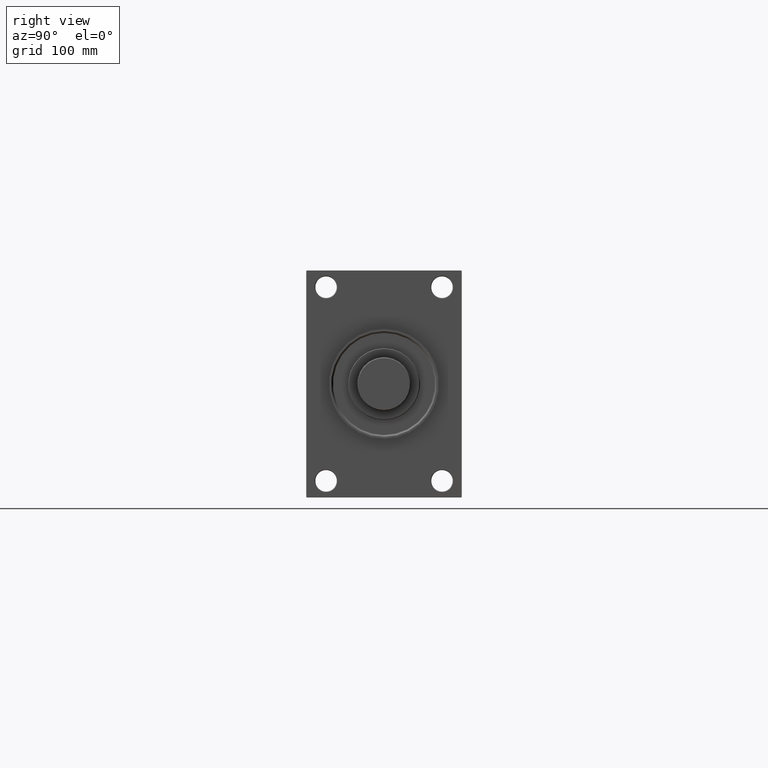
[diagram: clean part render]
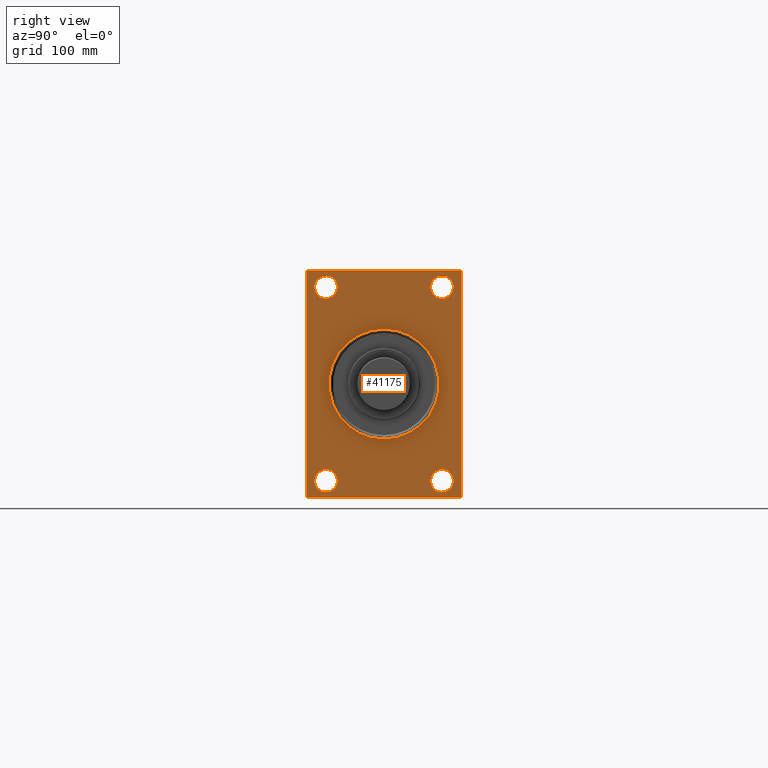
[diagram: same view with one face highlighted and labeled with its STEP entity id]
A machine part, right view. The second image highlights one B-rep face of the part: STEP entity #41175.
In plain terms, the highlighted planar face has unit normal (-1, 0, 0).
Its self-contained STEP definition (entity closure, byte-faithful):
#1190 = LINE ( 'NONE', #16121, #19328 ) ;
#1670 = DIRECTION ( 'NONE',  ( 0.000000000000000000, 0.000000000000000000, -1.000000000000000000 ) ) ;
#1694 = VERTEX_POINT ( 'NONE', #36394 ) ;
#1827 = VERTEX_POINT ( 'NONE', #3641 ) ;
#1848 = DIRECTION ( 'NONE',  ( 0.000000000000000000, 0.000000000000000000, -1.000000000000000000 ) ) ;
#2031 = ORIENTED_EDGE ( 'NONE', *, *, #41646, .T. ) ;
#2332 = LINE ( 'NONE', #25034, #20994 ) ;
#2667 = DIRECTION ( 'NONE',  ( -1.000000000000000000, 0.000000000000000000, -0.000000000000000000 ) ) ;
#3392 = FACE_BOUND ( 'NONE', #14671, .T. ) ;
#3629 = ORIENTED_EDGE ( 'NONE', *, *, #25963, .T. ) ;
#3635 = FACE_BOUND ( 'NONE', #18514, .T. ) ;
#3641 = CARTESIAN_POINT ( 'NONE',  ( 445.9999999999999432, 48.50000000000000711, 90.49999999999995737 ) ) ;
#4122 = CARTESIAN_POINT ( 'NONE',  ( 445.9999999999999432, -48.49999999999999289, -71.50000000000005684 ) ) ;
#4205 = AXIS2_PLACEMENT_3D ( 'NONE', #47051, #32377, #47280 ) ;
#4332 = VERTEX_POINT ( 'NONE', #42912 ) ;
#4536 = DIRECTION ( 'NONE',  ( 0.000000000000000000, 0.000000000000000000, -1.000000000000000000 ) ) ;
#4712 = DIRECTION ( 'NONE',  ( 0.000000000000000000, 0.7071067811865474617, -0.7071067811865474617 ) ) ;
#4780 = DIRECTION ( 'NONE',  ( 1.000000000000000000, 0.000000000000000000, 0.000000000000000000 ) ) ;
#5257 = CARTESIAN_POINT ( 'NONE',  ( 445.9999999999999432, 48.50000000000000711, -90.49999999999997158 ) ) ;
#5581 = LINE ( 'NONE', #42228, #35595 ) ;
#5767 = DIRECTION ( 'NONE',  ( -0.000000000000000000, -0.7071067811865378028, -0.7071067811865573427 ) ) ;
#5774 = ORIENTED_EDGE ( 'NONE', *, *, #26635, .T. ) ;
#6044 = AXIS2_PLACEMENT_3D ( 'NONE', #47267, #43596, #17701 ) ;
#6134 = CIRCLE ( 'NONE', #45128, 9.499999999999953815 ) ;
#6186 = ORIENTED_EDGE ( 'NONE', *, *, #22899, .F. ) ;
#6637 = VECTOR ( 'NONE', #36968, 1000.000000000000000 ) ;
#6649 = LINE ( 'NONE', #39891, #34424 ) ;
#7162 = LINE ( 'NONE', #22062, #6637 ) ;
#7403 = EDGE_LOOP ( 'NONE', ( #9340, #29282 ) ) ;
#7938 = CIRCLE ( 'NONE', #21957, 46.00000000000000000 ) ;
#8197 = CARTESIAN_POINT ( 'NONE',  ( 445.9999999999999432, 0.000000000000000000, 0.000000000000000000 ) ) ;
#8211 = CARTESIAN_POINT ( 'NONE',  ( 445.9999999999999432, 5.633375276077824704E-15, -46.00000000000000000 ) ) ;
#8590 = AXIS2_PLACEMENT_3D ( 'NONE', #29632, #11811, #19377 ) ;
#9060 = ORIENTED_EDGE ( 'NONE', *, *, #35587, .T. ) ;
#9340 = ORIENTED_EDGE ( 'NONE', *, *, #22942, .T. ) ;
#9350 = ORIENTED_EDGE ( 'NONE', *, *, #16318, .T. ) ;
#10253 = FACE_BOUND ( 'NONE', #7403, .T. ) ;
#10258 = EDGE_CURVE ( 'NONE', #24283, #42188, #17412, .T. ) ;
#10587 = EDGE_CURVE ( 'NONE', #42909, #35774, #5581, .T. ) ;
#10698 = VERTEX_POINT ( 'NONE', #35150 ) ;
#10943 = VERTEX_POINT ( 'NONE', #8211 ) ;
#11448 = VERTEX_POINT ( 'NONE', #24260 ) ;
#11718 = CARTESIAN_POINT ( 'NONE',  ( 445.9999999999999432, 48.50000000000000711, -81.00000000000001421 ) ) ;
#11811 = DIRECTION ( 'NONE',  ( -1.000000000000000000, 0.000000000000000000, -0.000000000000000000 ) ) ;
#11920 = VERTEX_POINT ( 'NONE', #4122 ) ;
#12239 = ORIENTED_EDGE ( 'NONE', *, *, #10587, .T. ) ;
#12280 = CARTESIAN_POINT ( 'NONE',  ( 445.9999999999999432, 64.50000000000002842, 94.99999999999997158 ) ) ;
#12864 = CARTESIAN_POINT ( 'NONE',  ( 445.9999999999999432, 0.000000000000000000, 0.000000000000000000 ) ) ;
#13481 = EDGE_LOOP ( 'NONE', ( #15229, #35235, #23801, #26925, #34400, #12239, #9060, #5774 ) ) ;
#13928 = CARTESIAN_POINT ( 'NONE',  ( 445.9999999999999432, -48.49999999999999289, -81.00000000000001421 ) ) ;
#14030 = CARTESIAN_POINT ( 'NONE',  ( 445.9999999999999432, 64.99999999999998579, -94.50000000000002842 ) ) ;
#14671 = EDGE_LOOP ( 'NONE', ( #6186, #27936 ) ) ;
#15229 = ORIENTED_EDGE ( 'NONE', *, *, #23493, .T. ) ;
#15345 = VERTEX_POINT ( 'NONE', #28454 ) ;
#15920 = AXIS2_PLACEMENT_3D ( 'NONE', #18556, #47624, #25147 ) ;
#16121 = CARTESIAN_POINT ( 'NONE',  ( 445.9999999999999432, -65.00000000000001421, 94.99999999999997158 ) ) ;
#16214 = DIRECTION ( 'NONE',  ( -1.000000000000000000, 0.000000000000000000, -0.000000000000000000 ) ) ;
#16318 = EDGE_CURVE ( 'NONE', #38635, #15345, #32513, .T. ) ;
#16771 = CARTESIAN_POINT ( 'NONE',  ( 445.9999999999999432, -48.49999999999999289, -81.00000000000001421 ) ) ;
#16956 = CARTESIAN_POINT ( 'NONE',  ( 445.9999999999999432, -48.50000000000000000, 81.00000000000000000 ) ) ;
#17412 = LINE ( 'NONE', #28164, #26163 ) ;
#17701 = DIRECTION ( 'NONE',  ( 0.000000000000000000, 0.000000000000000000, 1.000000000000000000 ) ) ;
#18061 = FACE_BOUND ( 'NONE', #35892, .T. ) ;
#18134 = CARTESIAN_POINT ( 'NONE',  ( 445.9999999999999432, 64.49999999999998579, -95.00000000000001421 ) ) ;
#18514 = EDGE_LOOP ( 'NONE', ( #3629, #26725 ) ) ;
#18556 = CARTESIAN_POINT ( 'NONE',  ( 445.9999999999999432, 0.000000000000000000, 0.000000000000000000 ) ) ;
#19328 = VECTOR ( 'NONE', #1670, 1000.000000000000000 ) ;
#19377 = DIRECTION ( 'NONE',  ( 0.000000000000000000, 0.000000000000000000, 1.000000000000000000 ) ) ;
#19525 = DIRECTION ( 'NONE',  ( -1.000000000000000000, 0.000000000000000000, -0.000000000000000000 ) ) ;
#19954 = VERTEX_POINT ( 'NONE', #26609 ) ;
#20994 = VECTOR ( 'NONE', #5767, 1000.000000000000000 ) ;
#21812 = CIRCLE ( 'NONE', #8590, 9.499999999999953815 ) ;
#21957 = AXIS2_PLACEMENT_3D ( 'NONE', #8197, #4780, #4536 ) ;
#22062 = CARTESIAN_POINT ( 'NONE',  ( 445.9999999999999432, 64.99999999999997158, 94.99999999999997158 ) ) ;
#22208 = FACE_OUTER_BOUND ( 'NONE', #13481, .T. ) ;
#22899 = EDGE_CURVE ( 'NONE', #11448, #10943, #38023, .T. ) ;
#22900 = VECTOR ( 'NONE', #4712, 1000.000000000000114 ) ;
#22942 = EDGE_CURVE ( 'NONE', #27593, #1827, #34892, .T. ) ;
#23493 = EDGE_CURVE ( 'NONE', #10698, #46839, #1190, .T. ) ;
#23705 = CIRCLE ( 'NONE', #4205, 9.499999999999953815 ) ;
#23801 = ORIENTED_EDGE ( 'NONE', *, *, #10258, .F. ) ;
#24260 = CARTESIAN_POINT ( 'NONE',  ( 445.9999999999999432, 0.000000000000000000, 46.00000000000000000 ) ) ;
#24283 = VERTEX_POINT ( 'NONE', #18134 ) ;
#25034 = CARTESIAN_POINT ( 'NONE',  ( 445.9999999999999432, -65.00000000000001421, 94.49999999999997158 ) ) ;
#25147 = DIRECTION ( 'NONE',  ( -0.000000000000000000, 0.000000000000000000, 1.000000000000000000 ) ) ;
#25466 = EDGE_CURVE ( 'NONE', #11920, #19954, #6134, .T. ) ;
#25867 = PLANE ( 'NONE',  #15920 ) ;
#25963 = EDGE_CURVE ( 'NONE', #19954, #11920, #31887, .T. ) ;
#26163 = VECTOR ( 'NONE', #28640, 1000.000000000000000 ) ;
#26194 = EDGE_LOOP ( 'NONE', ( #36539, #9350 ) ) ;
#26603 = CIRCLE ( 'NONE', #42996, 9.499999999999953815 ) ;
#26609 = CARTESIAN_POINT ( 'NONE',  ( 445.9999999999999432, -48.49999999999999289, -90.49999999999997158 ) ) ;
#26635 = EDGE_CURVE ( 'NONE', #4332, #10698, #2332, .T. ) ;
#26725 = ORIENTED_EDGE ( 'NONE', *, *, #25466, .T. ) ;
#26925 = ORIENTED_EDGE ( 'NONE', *, *, #45863, .T. ) ;
#27593 = VERTEX_POINT ( 'NONE', #43854 ) ;
#27758 = VECTOR ( 'NONE', #39211, 1000.000000000000000 ) ;
#27936 = ORIENTED_EDGE ( 'NONE', *, *, #33327, .F. ) ;
#28164 = CARTESIAN_POINT ( 'NONE',  ( 445.9999999999999432, 64.99999999999998579, -95.00000000000001421 ) ) ;
#28454 = CARTESIAN_POINT ( 'NONE',  ( 445.9999999999999432, -48.50000000000000000, 71.50000000000004263 ) ) ;
#28640 = DIRECTION ( 'NONE',  ( 0.000000000000000000, -1.000000000000000000, -1.067522139062650425E-16 ) ) ;
#28814 = FACE_BOUND ( 'NONE', #26194, .T. ) ;
#28851 = EDGE_CURVE ( 'NONE', #15345, #38635, #21812, .T. ) ;
#28935 = AXIS2_PLACEMENT_3D ( 'NONE', #42327, #16214, #33845 ) ;
#29126 = DIRECTION ( 'NONE',  ( 0.000000000000000000, -1.000000000000000000, 0.000000000000000000 ) ) ;
#29282 = ORIENTED_EDGE ( 'NONE', *, *, #31613, .T. ) ;
#29534 = AXIS2_PLACEMENT_3D ( 'NONE', #16771, #32136, #42652 ) ;
#29632 = CARTESIAN_POINT ( 'NONE',  ( 445.9999999999999432, -48.50000000000000000, 81.00000000000000000 ) ) ;
#31473 = CARTESIAN_POINT ( 'NONE',  ( 445.9999999999999432, -65.00000000000001421, -94.50000000000002842 ) ) ;
#31613 = EDGE_CURVE ( 'NONE', #1827, #27593, #42970, .T. ) ;
#31887 = CIRCLE ( 'NONE', #29534, 9.499999999999953815 ) ;
#32136 = DIRECTION ( 'NONE',  ( -1.000000000000000000, 0.000000000000000000, -0.000000000000000000 ) ) ;
#32377 = DIRECTION ( 'NONE',  ( -1.000000000000000000, 0.000000000000000000, -0.000000000000000000 ) ) ;
#32513 = CIRCLE ( 'NONE', #45001, 9.499999999999953815 ) ;
#32781 = DIRECTION ( 'NONE',  ( -1.000000000000000000, 0.000000000000000000, -0.000000000000000000 ) ) ;
#33327 = EDGE_CURVE ( 'NONE', #10943, #11448, #7938, .T. ) ;
#33845 = DIRECTION ( 'NONE',  ( 0.000000000000000000, 0.000000000000000000, 1.000000000000000000 ) ) ;
#34400 = ORIENTED_EDGE ( 'NONE', *, *, #45231, .F. ) ;
#34424 = VECTOR ( 'NONE', #29126, 1000.000000000000000 ) ;
#34427 = DIRECTION ( 'NONE',  ( 0.000000000000000000, 0.000000000000000000, 1.000000000000000000 ) ) ;
#34892 = CIRCLE ( 'NONE', #6044, 9.499999999999953815 ) ;
#35150 = CARTESIAN_POINT ( 'NONE',  ( 445.9999999999999432, -65.00000000000001421, 94.49999999999997158 ) ) ;
#35163 = VERTEX_POINT ( 'NONE', #40061 ) ;
#35235 = ORIENTED_EDGE ( 'NONE', *, *, #39998, .T. ) ;
#35249 = EDGE_CURVE ( 'NONE', #35163, #45724, #26603, .T. ) ;
#35327 = DIRECTION ( 'NONE',  ( 1.000000000000000000, 0.000000000000000000, 0.000000000000000000 ) ) ;
#35587 = EDGE_CURVE ( 'NONE', #35774, #4332, #6649, .T. ) ;
#35595 = VECTOR ( 'NONE', #38568, 1000.000000000000114 ) ;
#35695 = AXIS2_PLACEMENT_3D ( 'NONE', #12864, #35327, #1848 ) ;
#35774 = VERTEX_POINT ( 'NONE', #12280 ) ;
#35892 = EDGE_LOOP ( 'NONE', ( #2031, #42502 ) ) ;
#36394 = CARTESIAN_POINT ( 'NONE',  ( 445.9999999999999432, 64.99999999999998579, -94.50000000000002842 ) ) ;
#36539 = ORIENTED_EDGE ( 'NONE', *, *, #28851, .T. ) ;
#36968 = DIRECTION ( 'NONE',  ( 0.000000000000000000, 7.304098846218135653E-17, -1.000000000000000000 ) ) ;
#38023 = CIRCLE ( 'NONE', #35695, 46.00000000000000000 ) ;
#38568 = DIRECTION ( 'NONE',  ( 0.000000000000000000, -0.7071067811865474617, 0.7071067811865474617 ) ) ;
#38635 = VERTEX_POINT ( 'NONE', #45035 ) ;
#39211 = DIRECTION ( 'NONE',  ( -0.000000000000000000, 0.7071067811865573427, 0.7071067811865378028 ) ) ;
#39891 = CARTESIAN_POINT ( 'NONE',  ( 445.9999999999999432, 64.99999999999997158, 94.99999999999997158 ) ) ;
#39998 = EDGE_CURVE ( 'NONE', #46839, #42188, #42337, .T. ) ;
#40061 = CARTESIAN_POINT ( 'NONE',  ( 445.9999999999999432, 48.50000000000000711, -71.50000000000005684 ) ) ;
#40143 = CARTESIAN_POINT ( 'NONE',  ( 445.9999999999999432, -64.50000000000001421, -95.00000000000002842 ) ) ;
#41175 = ADVANCED_FACE ( 'NONE', ( #28814, #3635, #18061, #10253, #3392, #22208 ), #25867, .F. ) ;
#41646 = EDGE_CURVE ( 'NONE', #45724, #35163, #23705, .T. ) ;
#42188 = VERTEX_POINT ( 'NONE', #40143 ) ;
#42228 = CARTESIAN_POINT ( 'NONE',  ( 445.9999999999999432, 64.50000000000002842, 94.99999999999997158 ) ) ;
#42327 = CARTESIAN_POINT ( 'NONE',  ( 445.9999999999999432, 48.50000000000000711, 81.00000000000000000 ) ) ;
#42337 = LINE ( 'NONE', #45519, #22900 ) ;
#42502 = ORIENTED_EDGE ( 'NONE', *, *, #35249, .T. ) ;
#42652 = DIRECTION ( 'NONE',  ( 0.000000000000000000, 0.000000000000000000, 1.000000000000000000 ) ) ;
#42909 = VERTEX_POINT ( 'NONE', #46123 ) ;
#42912 = CARTESIAN_POINT ( 'NONE',  ( 445.9999999999999432, -64.50000000000002842, 94.99999999999997158 ) ) ;
#42970 = CIRCLE ( 'NONE', #28935, 9.499999999999953815 ) ;
#42996 = AXIS2_PLACEMENT_3D ( 'NONE', #11718, #19525, #34427 ) ;
#43112 = LINE ( 'NONE', #14030, #27758 ) ;
#43596 = DIRECTION ( 'NONE',  ( -1.000000000000000000, 0.000000000000000000, -0.000000000000000000 ) ) ;
#43705 = DIRECTION ( 'NONE',  ( 0.000000000000000000, 0.000000000000000000, 1.000000000000000000 ) ) ;
#43854 = CARTESIAN_POINT ( 'NONE',  ( 445.9999999999999432, 48.50000000000000711, 71.50000000000004263 ) ) ;
#45001 = AXIS2_PLACEMENT_3D ( 'NONE', #16956, #32781, #47454 ) ;
#45035 = CARTESIAN_POINT ( 'NONE',  ( 445.9999999999999432, -48.50000000000000000, 90.49999999999995737 ) ) ;
#45128 = AXIS2_PLACEMENT_3D ( 'NONE', #13928, #2667, #43705 ) ;
#45231 = EDGE_CURVE ( 'NONE', #42909, #1694, #7162, .T. ) ;
#45519 = CARTESIAN_POINT ( 'NONE',  ( 445.9999999999999432, -64.50000000000001421, -95.00000000000002842 ) ) ;
#45724 = VERTEX_POINT ( 'NONE', #5257 ) ;
#45863 = EDGE_CURVE ( 'NONE', #24283, #1694, #43112, .T. ) ;
#46123 = CARTESIAN_POINT ( 'NONE',  ( 445.9999999999999432, 64.99999999999997158, 94.50000000000002842 ) ) ;
#46839 = VERTEX_POINT ( 'NONE', #31473 ) ;
#47051 = CARTESIAN_POINT ( 'NONE',  ( 445.9999999999999432, 48.50000000000000711, -81.00000000000001421 ) ) ;
#47267 = CARTESIAN_POINT ( 'NONE',  ( 445.9999999999999432, 48.50000000000000711, 81.00000000000000000 ) ) ;
#47280 = DIRECTION ( 'NONE',  ( 0.000000000000000000, 0.000000000000000000, 1.000000000000000000 ) ) ;
#47454 = DIRECTION ( 'NONE',  ( 0.000000000000000000, 0.000000000000000000, 1.000000000000000000 ) ) ;
#47624 = DIRECTION ( 'NONE',  ( -1.000000000000000000, 0.000000000000000000, -0.000000000000000000 ) ) ;